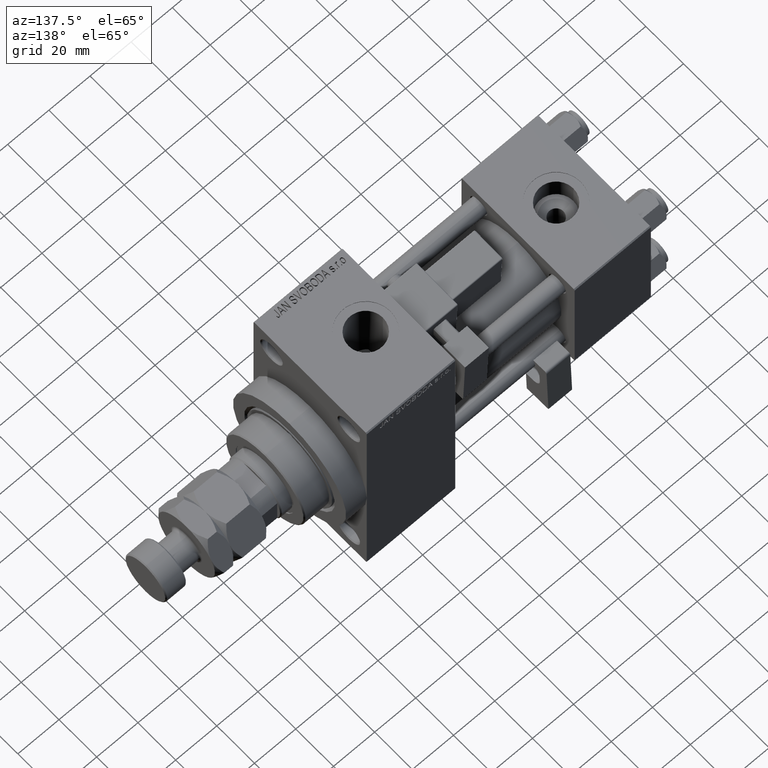
[diagram: clean part render]
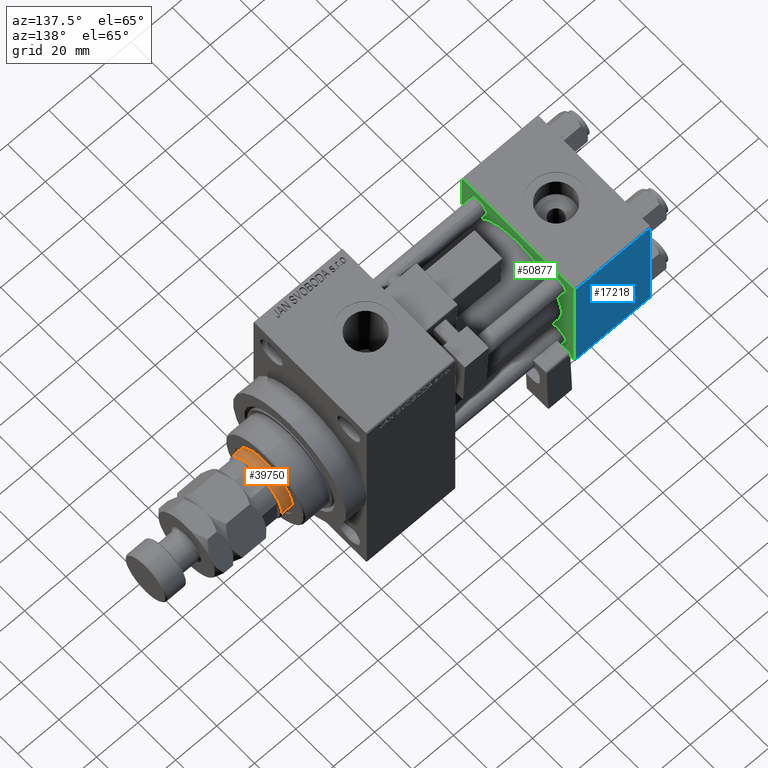
[diagram: same view with three faces highlighted in distinct colors, each labeled with its STEP entity id]
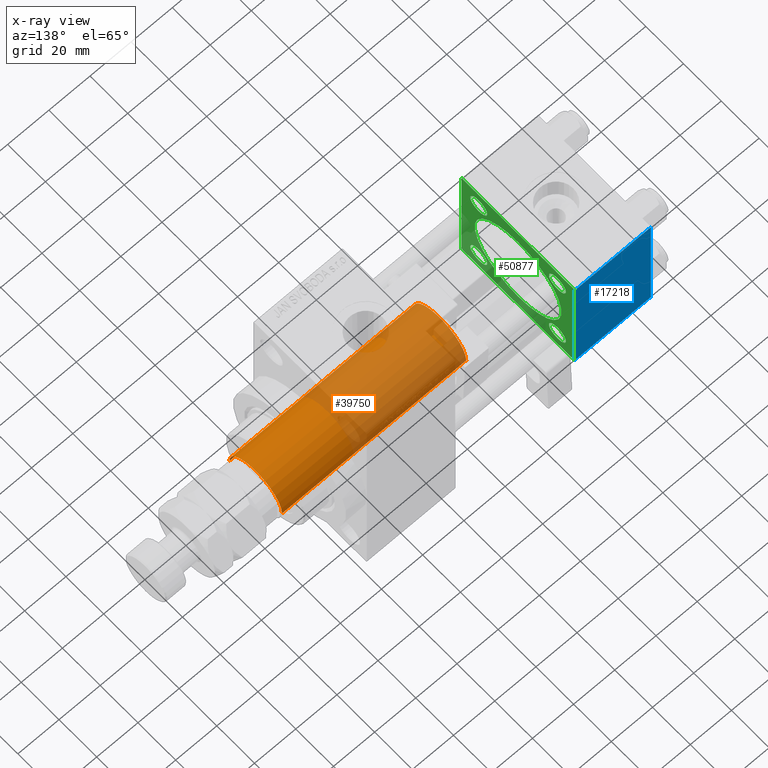
[diagram: x-ray of the same camera — body ghosted, the three highlighted faces saturated]
A machine part, auxiliary view with three faces highlighted in distinct colors.
The next image is the same camera in x-ray (body ghosted, the three faces saturated) — at least one of them is partly hidden behind the body in this view.
Their STEP definitions:

[orange] entity #39750 — the highlighted cylindrical surface (partial cylindrical patch) has radius 14 mm, axis along (-1, 0, 0).
#2442 = ORIENTED_EDGE ( 'NONE', *, *, #35766, .T. ) ;
#3090 = CARTESIAN_POINT ( 'NONE',  ( 0.000000000000000000, 0.000000000000000000, 128.0000000000000000 ) ) ;
#3101 = ORIENTED_EDGE ( 'NONE', *, *, #26832, .T. ) ;
#3312 = CARTESIAN_POINT ( 'NONE',  ( -14.00000000000000178, 0.000000000000000000, 38.00000000000000000 ) ) ;
#3484 = CARTESIAN_POINT ( 'NONE',  ( -14.00000000000000178, 0.000000000000000000, 127.5000000000000853 ) ) ;
#3859 = FACE_OUTER_BOUND ( 'NONE', #19479, .T. ) ;
#4292 = AXIS2_PLACEMENT_3D ( 'NONE', #8576, #44689, #41312 ) ;
#6045 = ORIENTED_EDGE ( 'NONE', *, *, #7142, .F. ) ;
#6467 = CARTESIAN_POINT ( 'NONE',  ( 14.00000000000000178, 1.714505518806294441E-15, 127.5000000000000853 ) ) ;
#6497 = LINE ( 'NONE', #49670, #37704 ) ;
#6571 = VECTOR ( 'NONE', #49085, 1000.000000000000000 ) ;
#7142 = EDGE_CURVE ( 'NONE', #49822, #7432, #48580, .T. ) ;
#7432 = VERTEX_POINT ( 'NONE', #34625 ) ;
#8576 = CARTESIAN_POINT ( 'NONE',  ( 0.000000000000000000, 0.000000000000000000, 127.5000000000000853 ) ) ;
#10275 = CARTESIAN_POINT ( 'NONE',  ( 0.000000000000000000, 0.000000000000000000, 38.00000000000000000 ) ) ;
#11152 = DIRECTION ( 'NONE',  ( -1.000000000000000000, 0.000000000000000000, 0.000000000000000000 ) ) ;
#15801 = CYLINDRICAL_SURFACE ( 'NONE', #42004, 14.00000000000000178 ) ;
#16714 = CIRCLE ( 'NONE', #4292, 14.00000000000000178 ) ;
#17817 = AXIS2_PLACEMENT_3D ( 'NONE', #10275, #18305, #42474 ) ;
#18305 = DIRECTION ( 'NONE',  ( 0.000000000000000000, 0.000000000000000000, 1.000000000000000000 ) ) ;
#19479 = EDGE_LOOP ( 'NONE', ( #6045, #3101, #2442, #51181 ) ) ;
#21946 = CIRCLE ( 'NONE', #17817, 14.00000000000000178 ) ;
#26832 = EDGE_CURVE ( 'NONE', #49822, #40456, #16714, .T. ) ;
#28737 = VERTEX_POINT ( 'NONE', #3312 ) ;
#34625 = CARTESIAN_POINT ( 'NONE',  ( 14.00000000000000178, 1.714505518806294441E-15, 38.00000000000000000 ) ) ;
#35766 = EDGE_CURVE ( 'NONE', #40456, #28737, #6497, .T. ) ;
#37704 = VECTOR ( 'NONE', #49147, 1000.000000000000000 ) ;
#39750 = ADVANCED_FACE ( 'NONE', ( #3859 ), #15801, .T. ) ;
#40456 = VERTEX_POINT ( 'NONE', #3484 ) ;
#41312 = DIRECTION ( 'NONE',  ( 1.000000000000000000, 0.000000000000000000, 0.000000000000000000 ) ) ;
#42004 = AXIS2_PLACEMENT_3D ( 'NONE', #3090, #43626, #11152 ) ;
#42474 = DIRECTION ( 'NONE',  ( 1.000000000000000000, 0.000000000000000000, 0.000000000000000000 ) ) ;
#43626 = DIRECTION ( 'NONE',  ( -0.000000000000000000, -0.000000000000000000, -1.000000000000000000 ) ) ;
#44656 = CARTESIAN_POINT ( 'NONE',  ( 14.00000000000000178, 1.714505518806294441E-15, 128.0000000000000000 ) ) ;
#44689 = DIRECTION ( 'NONE',  ( 0.000000000000000000, 0.000000000000000000, -1.000000000000000000 ) ) ;
#48580 = LINE ( 'NONE', #44656, #6571 ) ;
#49085 = DIRECTION ( 'NONE',  ( -0.000000000000000000, -0.000000000000000000, -1.000000000000000000 ) ) ;
#49147 = DIRECTION ( 'NONE',  ( -0.000000000000000000, -0.000000000000000000, -1.000000000000000000 ) ) ;
#49670 = CARTESIAN_POINT ( 'NONE',  ( -14.00000000000000178, 0.000000000000000000, 128.0000000000000000 ) ) ;
#49822 = VERTEX_POINT ( 'NONE', #6467 ) ;
#50041 = EDGE_CURVE ( 'NONE', #28737, #7432, #21946, .T. ) ;
#51181 = ORIENTED_EDGE ( 'NONE', *, *, #50041, .T. ) ;

[blue] entity #17218 — the highlighted planar face has unit normal (0, 1, 0).
#1631 = LINE ( 'NONE', #49735, #21732 ) ;
#5750 = DIRECTION ( 'NONE',  ( 0.000000000000000000, 0.000000000000000000, -1.000000000000000000 ) ) ;
#10354 = EDGE_CURVE ( 'NONE', #38245, #49995, #42345, .T. ) ;
#11199 = ORIENTED_EDGE ( 'NONE', *, *, #24856, .T. ) ;
#12456 = EDGE_CURVE ( 'NONE', #38245, #13876, #1631, .T. ) ;
#13193 = CARTESIAN_POINT ( 'NONE',  ( 37.00000000000000000, 29.99999999999999289, -29.50000000000000000 ) ) ;
#13876 = VERTEX_POINT ( 'NONE', #43535 ) ;
#14170 = FACE_OUTER_BOUND ( 'NONE', #32131, .T. ) ;
#14414 = CARTESIAN_POINT ( 'NONE',  ( 0.000000000000000000, 29.99999999999999289, -29.50000000000000000 ) ) ;
#15035 = CARTESIAN_POINT ( 'NONE',  ( 0.000000000000000000, 29.99999999999999289, 30.00000000000000000 ) ) ;
#16927 = LINE ( 'NONE', #32790, #22000 ) ;
#17218 = ADVANCED_FACE ( 'NONE', ( #14170 ), #25604, .T. ) ;
#21732 = VECTOR ( 'NONE', #46086, 1000.000000000000000 ) ;
#22000 = VECTOR ( 'NONE', #5750, 1000.000000000000000 ) ;
#22310 = AXIS2_PLACEMENT_3D ( 'NONE', #30028, #29768, #45892 ) ;
#24856 = EDGE_CURVE ( 'NONE', #40910, #49995, #51200, .T. ) ;
#25604 = PLANE ( 'NONE',  #22310 ) ;
#29768 = DIRECTION ( 'NONE',  ( -0.000000000000000000, 1.000000000000000000, 0.000000000000000000 ) ) ;
#30028 = CARTESIAN_POINT ( 'NONE',  ( 37.00000000000000000, 29.99999999999999289, 30.00000000000000000 ) ) ;
#30105 = ORIENTED_EDGE ( 'NONE', *, *, #37753, .T. ) ;
#31438 = CARTESIAN_POINT ( 'NONE',  ( 37.00000000000000000, 29.99999999999999289, -29.50000000000000000 ) ) ;
#32131 = EDGE_LOOP ( 'NONE', ( #30105, #11199, #45648, #44514 ) ) ;
#32790 = CARTESIAN_POINT ( 'NONE',  ( 37.00000000000000000, 29.99999999999999289, 30.00000000000000000 ) ) ;
#35305 = DIRECTION ( 'NONE',  ( 0.000000000000000000, 0.000000000000000000, -1.000000000000000000 ) ) ;
#35757 = VECTOR ( 'NONE', #46802, 1000.000000000000000 ) ;
#37753 = EDGE_CURVE ( 'NONE', #13876, #40910, #16927, .T. ) ;
#38245 = VERTEX_POINT ( 'NONE', #43859 ) ;
#38246 = VECTOR ( 'NONE', #35305, 1000.000000000000000 ) ;
#40910 = VERTEX_POINT ( 'NONE', #13193 ) ;
#42345 = LINE ( 'NONE', #15035, #38246 ) ;
#43535 = CARTESIAN_POINT ( 'NONE',  ( 37.00000000000000000, 29.99999999999999289, 29.50000000000000000 ) ) ;
#43859 = CARTESIAN_POINT ( 'NONE',  ( 0.000000000000000000, 29.99999999999999289, 29.50000000000000000 ) ) ;
#44514 = ORIENTED_EDGE ( 'NONE', *, *, #12456, .T. ) ;
#45648 = ORIENTED_EDGE ( 'NONE', *, *, #10354, .F. ) ;
#45892 = DIRECTION ( 'NONE',  ( 0.000000000000000000, -0.000000000000000000, 1.000000000000000000 ) ) ;
#46086 = DIRECTION ( 'NONE',  ( 1.000000000000000000, 0.000000000000000000, 0.000000000000000000 ) ) ;
#46802 = DIRECTION ( 'NONE',  ( -1.000000000000000000, 0.000000000000000000, 0.000000000000000000 ) ) ;
#49735 = CARTESIAN_POINT ( 'NONE',  ( 37.00000000000000000, 29.99999999999999289, 29.50000000000000000 ) ) ;
#49995 = VERTEX_POINT ( 'NONE', #14414 ) ;
#51200 = LINE ( 'NONE', #31438, #35757 ) ;

[green] entity #50877 — the highlighted planar face has unit normal (-1, 0, 0).
#57 = ORIENTED_EDGE ( 'NONE', *, *, #35740, .T. ) ;
#466 = CARTESIAN_POINT ( 'NONE',  ( 37.00000000000000000, 29.49999999999999289, 30.00000000000000000 ) ) ;
#563 = CARTESIAN_POINT ( 'NONE',  ( 37.00000000000000000, 20.84999999999999787, -16.35000000000002274 ) ) ;
#979 = DIRECTION ( 'NONE',  ( -1.000000000000000000, 0.000000000000000000, -0.000000000000000000 ) ) ;
#998 = DIRECTION ( 'NONE',  ( 0.000000000000000000, -1.000000000000000000, -1.156482317317871725E-16 ) ) ;
#1278 = ORIENTED_EDGE ( 'NONE', *, *, #37753, .F. ) ;
#1982 = ORIENTED_EDGE ( 'NONE', *, *, #39897, .T. ) ;
#2005 = LINE ( 'NONE', #49846, #44629 ) ;
#2166 = DIRECTION ( 'NONE',  ( -0.000000000000000000, 0.7071067811865574537, 0.7071067811865376918 ) ) ;
#2550 = ORIENTED_EDGE ( 'NONE', *, *, #38395, .T. ) ;
#2670 = ORIENTED_EDGE ( 'NONE', *, *, #29657, .T. ) ;
#3550 = FACE_OUTER_BOUND ( 'NONE', #24919, .T. ) ;
#3613 = CIRCLE ( 'NONE', #46784, 23.00000000000000000 ) ;
#3931 = LINE ( 'NONE', #33222, #8171 ) ;
#4099 = CARTESIAN_POINT ( 'NONE',  ( 37.00000000000000000, 20.84999999999999787, -20.85000000000000142 ) ) ;
#4889 = CARTESIAN_POINT ( 'NONE',  ( 37.00000000000000000, -30.00000000000000000, -29.50000000000001776 ) ) ;
#4962 = ORIENTED_EDGE ( 'NONE', *, *, #30428, .T. ) ;
#4991 = DIRECTION ( 'NONE',  ( 0.000000000000000000, 0.000000000000000000, 1.000000000000000000 ) ) ;
#5269 = AXIS2_PLACEMENT_3D ( 'NONE', #39581, #38568, #35425 ) ;
#5750 = DIRECTION ( 'NONE',  ( 0.000000000000000000, 0.000000000000000000, -1.000000000000000000 ) ) ;
#5757 = EDGE_CURVE ( 'NONE', #39116, #16808, #44701, .T. ) ;
#5865 = VERTEX_POINT ( 'NONE', #28862 ) ;
#5875 = DIRECTION ( 'NONE',  ( 0.000000000000000000, 0.000000000000000000, 1.000000000000000000 ) ) ;
#6028 = CARTESIAN_POINT ( 'NONE',  ( 37.00000000000000000, 29.99999999999999289, -30.00000000000000000 ) ) ;
#7623 = CARTESIAN_POINT ( 'NONE',  ( 37.00000000000000000, -20.84999999999999076, 16.35000000000002629 ) ) ;
#8171 = VECTOR ( 'NONE', #998, 1000.000000000000000 ) ;
#8474 = FACE_BOUND ( 'NONE', #9555, .T. ) ;
#8636 = VECTOR ( 'NONE', #13784, 1000.000000000000114 ) ;
#9299 = EDGE_CURVE ( 'NONE', #21525, #48338, #30681, .T. ) ;
#9357 = ORIENTED_EDGE ( 'NONE', *, *, #9299, .T. ) ;
#9555 = EDGE_LOOP ( 'NONE', ( #2670, #32018 ) ) ;
#9613 = VERTEX_POINT ( 'NONE', #13426 ) ;
#10053 = DIRECTION ( 'NONE',  ( 0.000000000000000000, 0.7071067811865474617, -0.7071067811865474617 ) ) ;
#10064 = CARTESIAN_POINT ( 'NONE',  ( 37.00000000000000000, 20.84999999999999787, 25.34999999999997655 ) ) ;
#10410 = CARTESIAN_POINT ( 'NONE',  ( 37.00000000000000000, -30.00000000000000000, 29.49999999999999289 ) ) ;
#10736 = VECTOR ( 'NONE', #41901, 1000.000000000000000 ) ;
#10994 = VERTEX_POINT ( 'NONE', #51353 ) ;
#11012 = CARTESIAN_POINT ( 'NONE',  ( 37.00000000000000000, -20.84999999999999076, -20.85000000000000497 ) ) ;
#11195 = CIRCLE ( 'NONE', #41930, 4.499999999999976019 ) ;
#11680 = VERTEX_POINT ( 'NONE', #29567 ) ;
#11787 = VECTOR ( 'NONE', #2166, 999.9999999999998863 ) ;
#11860 = FACE_BOUND ( 'NONE', #16823, .T. ) ;
#11883 = ORIENTED_EDGE ( 'NONE', *, *, #48907, .T. ) ;
#12421 = AXIS2_PLACEMENT_3D ( 'NONE', #36890, #37414, #17381 ) ;
#13193 = CARTESIAN_POINT ( 'NONE',  ( 37.00000000000000000, 29.99999999999999289, -29.50000000000000000 ) ) ;
#13232 = EDGE_CURVE ( 'NONE', #13876, #39892, #44022, .T. ) ;
#13411 = CARTESIAN_POINT ( 'NONE',  ( 37.00000000000000000, 20.84999999999999787, 20.85000000000000142 ) ) ;
#13426 = CARTESIAN_POINT ( 'NONE',  ( 37.00000000000000000, -29.50000000000000000, -30.00000000000000711 ) ) ;
#13532 = EDGE_CURVE ( 'NONE', #36851, #11680, #3613, .T. ) ;
#13692 = AXIS2_PLACEMENT_3D ( 'NONE', #43826, #20415, #24065 ) ;
#13732 = EDGE_LOOP ( 'NONE', ( #44306, #33367 ) ) ;
#13784 = DIRECTION ( 'NONE',  ( -0.000000000000000000, -0.7071067811865474617, -0.7071067811865474617 ) ) ;
#13826 = ORIENTED_EDGE ( 'NONE', *, *, #18959, .T. ) ;
#13876 = VERTEX_POINT ( 'NONE', #43535 ) ;
#14249 = CIRCLE ( 'NONE', #48402, 4.499999999999976019 ) ;
#14469 = DIRECTION ( 'NONE',  ( 0.000000000000000000, 0.000000000000000000, -1.000000000000000000 ) ) ;
#15603 = ORIENTED_EDGE ( 'NONE', *, *, #13532, .F. ) ;
#16032 = AXIS2_PLACEMENT_3D ( 'NONE', #4099, #23598, #39459 ) ;
#16592 = EDGE_LOOP ( 'NONE', ( #9357, #1982 ) ) ;
#16808 = VERTEX_POINT ( 'NONE', #40750 ) ;
#16823 = EDGE_LOOP ( 'NONE', ( #15603, #31524 ) ) ;
#16927 = LINE ( 'NONE', #32790, #22000 ) ;
#17306 = CIRCLE ( 'NONE', #32275, 4.499999999999976019 ) ;
#17381 = DIRECTION ( 'NONE',  ( 0.000000000000000000, 0.000000000000000000, 1.000000000000000000 ) ) ;
#17570 = CARTESIAN_POINT ( 'NONE',  ( 37.00000000000000000, -29.50000000000001066, -30.00000000000000711 ) ) ;
#17625 = EDGE_CURVE ( 'NONE', #39892, #35219, #3931, .T. ) ;
#17739 = CIRCLE ( 'NONE', #5269, 23.00000000000000000 ) ;
#18959 = EDGE_CURVE ( 'NONE', #46096, #35936, #2005, .T. ) ;
#19404 = PLANE ( 'NONE',  #13692 ) ;
#20415 = DIRECTION ( 'NONE',  ( -1.000000000000000000, 0.000000000000000000, -0.000000000000000000 ) ) ;
#20786 = CARTESIAN_POINT ( 'NONE',  ( 37.00000000000000000, -30.00000000000000000, 29.49999999999999289 ) ) ;
#21009 = DIRECTION ( 'NONE',  ( 0.000000000000000000, 0.000000000000000000, 1.000000000000000000 ) ) ;
#21066 = CARTESIAN_POINT ( 'NONE',  ( 37.00000000000000000, 29.49999999999997868, -30.00000000000000000 ) ) ;
#21080 = DIRECTION ( 'NONE',  ( -1.000000000000000000, 0.000000000000000000, -0.000000000000000000 ) ) ;
#21091 = LINE ( 'NONE', #6028, #10736 ) ;
#21232 = AXIS2_PLACEMENT_3D ( 'NONE', #24628, #979, #28793 ) ;
#21268 = EDGE_LOOP ( 'NONE', ( #11883, #30741 ) ) ;
#21491 = EDGE_CURVE ( 'NONE', #5865, #10994, #17306, .T. ) ;
#21525 = VERTEX_POINT ( 'NONE', #7623 ) ;
#21729 = EDGE_CURVE ( 'NONE', #30760, #9613, #21091, .T. ) ;
#22000 = VECTOR ( 'NONE', #5750, 1000.000000000000000 ) ;
#23598 = DIRECTION ( 'NONE',  ( -1.000000000000000000, 0.000000000000000000, -0.000000000000000000 ) ) ;
#24065 = DIRECTION ( 'NONE',  ( -0.000000000000000000, 0.000000000000000000, 1.000000000000000000 ) ) ;
#24213 = ORIENTED_EDGE ( 'NONE', *, *, #17625, .T. ) ;
#24628 = CARTESIAN_POINT ( 'NONE',  ( 37.00000000000000000, -20.84999999999999076, 20.85000000000000497 ) ) ;
#24659 = DIRECTION ( 'NONE',  ( 1.000000000000000000, -0.000000000000000000, 0.000000000000000000 ) ) ;
#24919 = EDGE_LOOP ( 'NONE', ( #38714, #4962, #1278, #37386, #24213, #57, #13826, #2550 ) ) ;
#25116 = CARTESIAN_POINT ( 'NONE',  ( 37.00000000000000000, 20.84999999999999787, -25.34999999999997655 ) ) ;
#25372 = LINE ( 'NONE', #17570, #43624 ) ;
#26233 = CARTESIAN_POINT ( 'NONE',  ( 37.00000000000000000, -20.84999999999999076, 25.34999999999998010 ) ) ;
#28793 = DIRECTION ( 'NONE',  ( 0.000000000000000000, 0.000000000000000000, 1.000000000000000000 ) ) ;
#28862 = CARTESIAN_POINT ( 'NONE',  ( 37.00000000000000000, -20.84999999999999076, -16.35000000000002629 ) ) ;
#28914 = CARTESIAN_POINT ( 'NONE',  ( 37.00000000000000000, -20.84999999999999076, -20.85000000000000497 ) ) ;
#29197 = LINE ( 'NONE', #29709, #11787 ) ;
#29428 = VERTEX_POINT ( 'NONE', #563 ) ;
#29534 = DIRECTION ( 'NONE',  ( -1.000000000000000000, 0.000000000000000000, -0.000000000000000000 ) ) ;
#29567 = CARTESIAN_POINT ( 'NONE',  ( 37.00000000000000000, 2.146024240737012665E-16, -23.00000000000000000 ) ) ;
#29657 = EDGE_CURVE ( 'NONE', #16808, #39116, #14249, .T. ) ;
#29709 = CARTESIAN_POINT ( 'NONE',  ( 37.00000000000000000, 29.99999999999999289, -29.50000000000000000 ) ) ;
#30428 = EDGE_CURVE ( 'NONE', #30760, #40910, #29197, .T. ) ;
#30681 = CIRCLE ( 'NONE', #12421, 4.499999999999976019 ) ;
#30741 = ORIENTED_EDGE ( 'NONE', *, *, #21491, .T. ) ;
#30760 = VERTEX_POINT ( 'NONE', #21066 ) ;
#31524 = ORIENTED_EDGE ( 'NONE', *, *, #48726, .F. ) ;
#31727 = DIRECTION ( 'NONE',  ( 0.000000000000000000, 0.000000000000000000, 1.000000000000000000 ) ) ;
#32018 = ORIENTED_EDGE ( 'NONE', *, *, #5757, .T. ) ;
#32275 = AXIS2_PLACEMENT_3D ( 'NONE', #11012, #34660, #38310 ) ;
#32535 = CARTESIAN_POINT ( 'NONE',  ( 37.00000000000000000, 20.84999999999999787, -20.85000000000000142 ) ) ;
#32790 = CARTESIAN_POINT ( 'NONE',  ( 37.00000000000000000, 29.99999999999999289, 30.00000000000000000 ) ) ;
#33088 = DIRECTION ( 'NONE',  ( 0.000000000000000000, -0.7071067811865474617, 0.7071067811865474617 ) ) ;
#33222 = CARTESIAN_POINT ( 'NONE',  ( 37.00000000000000000, 29.99999999999999289, 30.00000000000000000 ) ) ;
#33367 = ORIENTED_EDGE ( 'NONE', *, *, #37735, .T. ) ;
#34374 = CIRCLE ( 'NONE', #35181, 4.499999999999976019 ) ;
#34660 = DIRECTION ( 'NONE',  ( -1.000000000000000000, 0.000000000000000000, -0.000000000000000000 ) ) ;
#34865 = DIRECTION ( 'NONE',  ( -1.000000000000000000, 0.000000000000000000, -0.000000000000000000 ) ) ;
#35181 = AXIS2_PLACEMENT_3D ( 'NONE', #28914, #36442, #4991 ) ;
#35219 = VERTEX_POINT ( 'NONE', #45951 ) ;
#35425 = DIRECTION ( 'NONE',  ( 0.000000000000000000, 0.000000000000000000, 1.000000000000000000 ) ) ;
#35740 = EDGE_CURVE ( 'NONE', #35219, #46096, #37707, .T. ) ;
#35848 = CIRCLE ( 'NONE', #16032, 4.499999999999976019 ) ;
#35936 = VERTEX_POINT ( 'NONE', #4889 ) ;
#36442 = DIRECTION ( 'NONE',  ( -1.000000000000000000, 0.000000000000000000, -0.000000000000000000 ) ) ;
#36726 = CARTESIAN_POINT ( 'NONE',  ( 37.00000000000000000, 29.49999999999999289, 30.00000000000000000 ) ) ;
#36814 = VECTOR ( 'NONE', #33088, 1000.000000000000114 ) ;
#36851 = VERTEX_POINT ( 'NONE', #43977 ) ;
#36890 = CARTESIAN_POINT ( 'NONE',  ( 37.00000000000000000, -20.84999999999999076, 20.85000000000000497 ) ) ;
#37386 = ORIENTED_EDGE ( 'NONE', *, *, #13232, .T. ) ;
#37414 = DIRECTION ( 'NONE',  ( -1.000000000000000000, 0.000000000000000000, -0.000000000000000000 ) ) ;
#37707 = LINE ( 'NONE', #10410, #8636 ) ;
#37735 = EDGE_CURVE ( 'NONE', #29428, #47423, #11195, .T. ) ;
#37753 = EDGE_CURVE ( 'NONE', #13876, #40910, #16927, .T. ) ;
#38310 = DIRECTION ( 'NONE',  ( 0.000000000000000000, 0.000000000000000000, 1.000000000000000000 ) ) ;
#38395 = EDGE_CURVE ( 'NONE', #35936, #9613, #25372, .T. ) ;
#38568 = DIRECTION ( 'NONE',  ( 1.000000000000000000, -0.000000000000000000, 0.000000000000000000 ) ) ;
#38714 = ORIENTED_EDGE ( 'NONE', *, *, #21729, .F. ) ;
#39116 = VERTEX_POINT ( 'NONE', #10064 ) ;
#39459 = DIRECTION ( 'NONE',  ( 0.000000000000000000, 0.000000000000000000, 1.000000000000000000 ) ) ;
#39581 = CARTESIAN_POINT ( 'NONE',  ( 37.00000000000000000, -2.602085213965210642E-15, 0.000000000000000000 ) ) ;
#39892 = VERTEX_POINT ( 'NONE', #466 ) ;
#39897 = EDGE_CURVE ( 'NONE', #48338, #21525, #51122, .T. ) ;
#40750 = CARTESIAN_POINT ( 'NONE',  ( 37.00000000000000000, 20.84999999999999787, 16.35000000000002274 ) ) ;
#40910 = VERTEX_POINT ( 'NONE', #13193 ) ;
#41901 = DIRECTION ( 'NONE',  ( 0.000000000000000000, -1.000000000000000000, -1.156482317317871725E-16 ) ) ;
#41930 = AXIS2_PLACEMENT_3D ( 'NONE', #32535, #21080, #45011 ) ;
#43535 = CARTESIAN_POINT ( 'NONE',  ( 37.00000000000000000, 29.99999999999999289, 29.50000000000000000 ) ) ;
#43624 = VECTOR ( 'NONE', #10053, 1000.000000000000114 ) ;
#43826 = CARTESIAN_POINT ( 'NONE',  ( 37.00000000000000000, 0.000000000000000000, 0.000000000000000000 ) ) ;
#43977 = CARTESIAN_POINT ( 'NONE',  ( 37.00000000000000000, -2.602085213965210642E-15, 23.00000000000000000 ) ) ;
#44022 = LINE ( 'NONE', #36726, #36814 ) ;
#44306 = ORIENTED_EDGE ( 'NONE', *, *, #45022, .T. ) ;
#44629 = VECTOR ( 'NONE', #14469, 1000.000000000000000 ) ;
#44701 = CIRCLE ( 'NONE', #47204, 4.499999999999976019 ) ;
#45011 = DIRECTION ( 'NONE',  ( 0.000000000000000000, 0.000000000000000000, 1.000000000000000000 ) ) ;
#45022 = EDGE_CURVE ( 'NONE', #47423, #29428, #35848, .T. ) ;
#45951 = CARTESIAN_POINT ( 'NONE',  ( 37.00000000000000000, -29.49999999999998579, 29.99999999999999289 ) ) ;
#46096 = VERTEX_POINT ( 'NONE', #20786 ) ;
#46784 = AXIS2_PLACEMENT_3D ( 'NONE', #48843, #24659, #21009 ) ;
#47204 = AXIS2_PLACEMENT_3D ( 'NONE', #47859, #34865, #31727 ) ;
#47423 = VERTEX_POINT ( 'NONE', #25116 ) ;
#47484 = FACE_BOUND ( 'NONE', #13732, .T. ) ;
#47859 = CARTESIAN_POINT ( 'NONE',  ( 37.00000000000000000, 20.84999999999999787, 20.85000000000000142 ) ) ;
#47995 = FACE_BOUND ( 'NONE', #16592, .T. ) ;
#48338 = VERTEX_POINT ( 'NONE', #26233 ) ;
#48402 = AXIS2_PLACEMENT_3D ( 'NONE', #13411, #29534, #5875 ) ;
#48726 = EDGE_CURVE ( 'NONE', #11680, #36851, #17739, .T. ) ;
#48843 = CARTESIAN_POINT ( 'NONE',  ( 37.00000000000000000, -2.602085213965210642E-15, 0.000000000000000000 ) ) ;
#48907 = EDGE_CURVE ( 'NONE', #10994, #5865, #34374, .T. ) ;
#49846 = CARTESIAN_POINT ( 'NONE',  ( 37.00000000000000000, -30.00000000000000000, 29.99999999999999289 ) ) ;
#50877 = ADVANCED_FACE ( 'NONE', ( #51368, #47484, #47995, #8474, #11860, #3550 ), #19404, .F. ) ;
#51122 = CIRCLE ( 'NONE', #21232, 4.499999999999976019 ) ;
#51353 = CARTESIAN_POINT ( 'NONE',  ( 37.00000000000000000, -20.84999999999999076, -25.34999999999998010 ) ) ;
#51368 = FACE_BOUND ( 'NONE', #21268, .T. ) ;